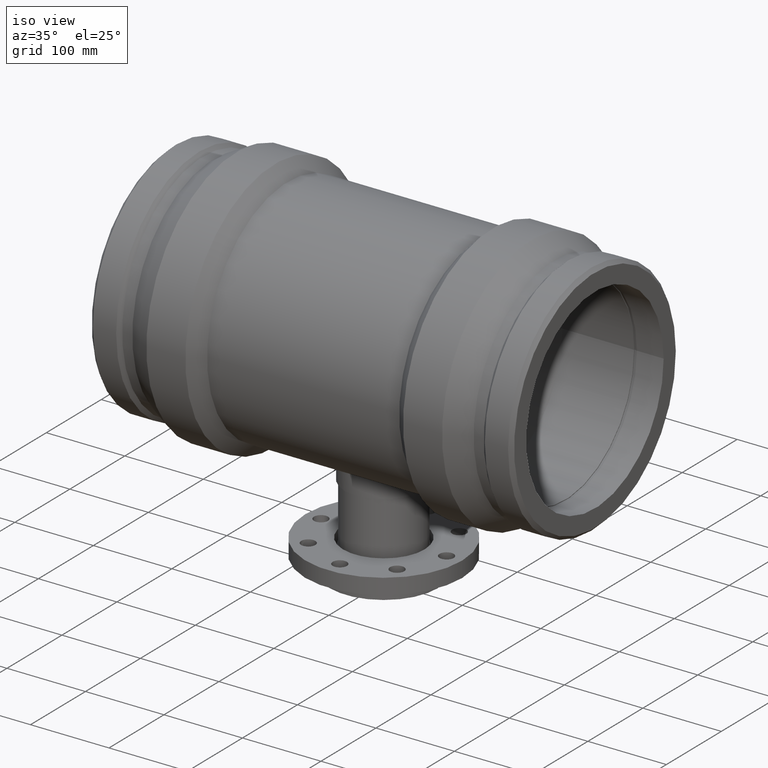
[diagram: clean part render]
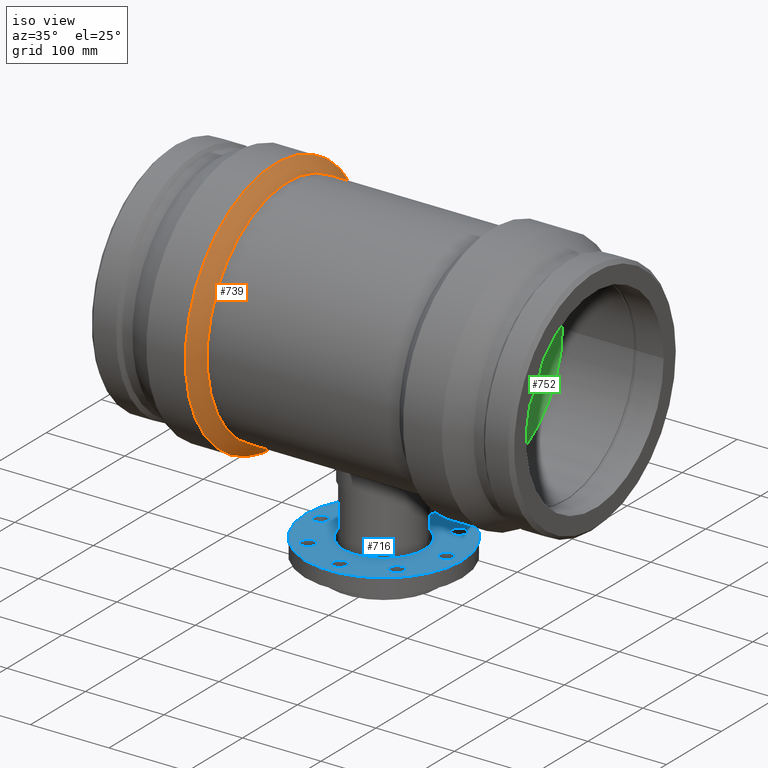
[diagram: same view with three faces highlighted in distinct colors, each labeled with its STEP entity id]
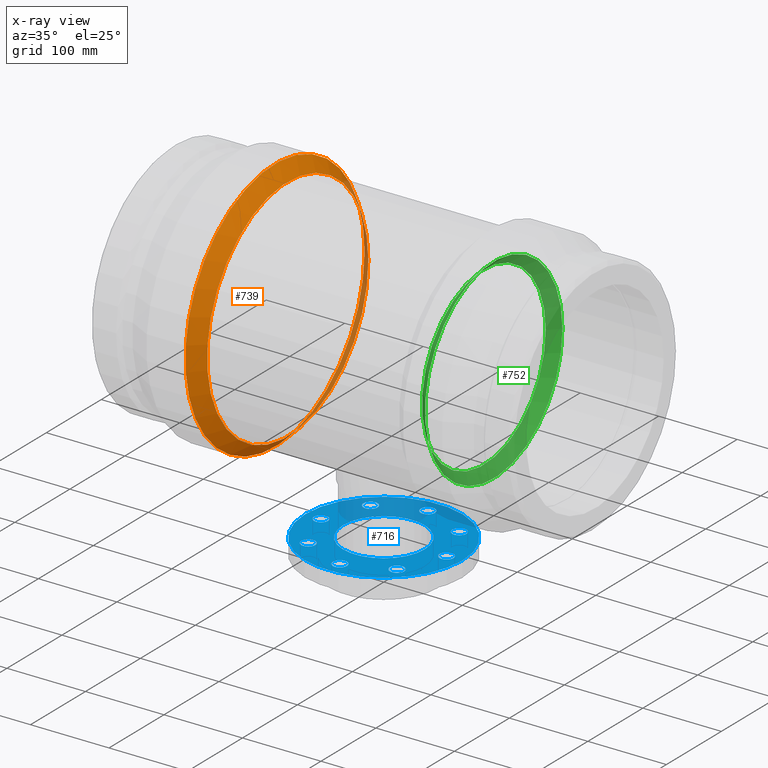
[diagram: x-ray of the same camera — body ghosted, the three highlighted faces saturated]
A machine part, iso view with three faces highlighted in distinct colors.
The next image is the same camera in x-ray (body ghosted, the three faces saturated) — at least one of them is partly hidden behind the body in this view.
Their STEP definitions:

[orange] entity #739 — the highlighted conical surface has half-angle 45 deg.
#21=CONICAL_SURFACE('',#846,154.85,45.);
#99=FACE_BOUND('',#371,.T.);
#148=CIRCLE('',#808,146.7);
#166=CIRCLE('',#845,163.);
#255=FACE_OUTER_BOUND('',#370,.T.);
#370=EDGE_LOOP('',(#656));
#371=EDGE_LOOP('',(#657));
#449=VERTEX_POINT('',#1543);
#469=VERTEX_POINT('',#1668);
#519=EDGE_CURVE('',#449,#449,#148,.T.);
#539=EDGE_CURVE('',#469,#469,#166,.T.);
#656=ORIENTED_EDGE('',*,*,#539,.T.);
#657=ORIENTED_EDGE('',*,*,#519,.F.);
#739=ADVANCED_FACE('',(#255,#99),#21,.T.);
#808=AXIS2_PLACEMENT_3D('',#1544,#981,#982);
#845=AXIS2_PLACEMENT_3D('',#1669,#1055,#1056);
#846=AXIS2_PLACEMENT_3D('',#1670,#1057,#1058);
#981=DIRECTION('center_axis',(1.,0.,0.));
#982=DIRECTION('ref_axis',(0.,0.,-1.));
#1055=DIRECTION('center_axis',(1.,0.,0.));
#1056=DIRECTION('ref_axis',(0.,0.,-1.));
#1057=DIRECTION('center_axis',(-1.,0.,0.));
#1058=DIRECTION('ref_axis',(0.,1.,0.));
#1543=CARTESIAN_POINT('',(-122.395,146.7,0.));
#1544=CARTESIAN_POINT('Origin',(-122.395,0.,0.));
#1668=CARTESIAN_POINT('',(-138.695,163.,0.));
#1669=CARTESIAN_POINT('Origin',(-138.695,0.,0.));
#1670=CARTESIAN_POINT('Origin',(-130.545,0.,0.));

[blue] entity #716 — the highlighted planar face has unit normal (0, 0, 1).
#32=PLANE('',#801);
#60=FACE_BOUND('',#309,.T.);
#61=FACE_BOUND('',#310,.T.);
#62=FACE_BOUND('',#311,.T.);
#63=FACE_BOUND('',#312,.T.);
#64=FACE_BOUND('',#313,.T.);
#65=FACE_BOUND('',#314,.T.);
#66=FACE_BOUND('',#315,.T.);
#67=FACE_BOUND('',#316,.T.);
#68=FACE_BOUND('',#317,.T.);
#121=CIRCLE('',#762,9.);
#123=CIRCLE('',#765,9.);
#125=CIRCLE('',#768,9.);
#127=CIRCLE('',#771,9.);
#129=CIRCLE('',#774,9.);
#131=CIRCLE('',#777,9.);
#133=CIRCLE('',#780,9.);
#135=CIRCLE('',#783,9.);
#144=CIRCLE('',#800,52.);
#145=CIRCLE('',#802,100.);
#232=FACE_OUTER_BOUND('',#308,.T.);
#308=EDGE_LOOP('',(#594));
#309=EDGE_LOOP('',(#595));
#310=EDGE_LOOP('',(#596));
#311=EDGE_LOOP('',(#597));
#312=EDGE_LOOP('',(#598));
#313=EDGE_LOOP('',(#599));
#314=EDGE_LOOP('',(#600));
#315=EDGE_LOOP('',(#601));
#316=EDGE_LOOP('',(#602));
#317=EDGE_LOOP('',(#603));
#421=VERTEX_POINT('',#1403);
#423=VERTEX_POINT('',#1408);
#425=VERTEX_POINT('',#1413);
#427=VERTEX_POINT('',#1418);
#429=VERTEX_POINT('',#1423);
#431=VERTEX_POINT('',#1428);
#433=VERTEX_POINT('',#1433);
#435=VERTEX_POINT('',#1438);
#445=VERTEX_POINT('',#1531);
#446=VERTEX_POINT('',#1534);
#491=EDGE_CURVE('',#421,#421,#121,.T.);
#493=EDGE_CURVE('',#423,#423,#123,.T.);
#495=EDGE_CURVE('',#425,#425,#125,.T.);
#497=EDGE_CURVE('',#427,#427,#127,.T.);
#499=EDGE_CURVE('',#429,#429,#129,.T.);
#501=EDGE_CURVE('',#431,#431,#131,.T.);
#503=EDGE_CURVE('',#433,#433,#133,.T.);
#505=EDGE_CURVE('',#435,#435,#135,.T.);
#515=EDGE_CURVE('',#445,#445,#144,.T.);
#516=EDGE_CURVE('',#446,#446,#145,.T.);
#594=ORIENTED_EDGE('',*,*,#516,.F.);
#595=ORIENTED_EDGE('',*,*,#491,.T.);
#596=ORIENTED_EDGE('',*,*,#493,.T.);
#597=ORIENTED_EDGE('',*,*,#495,.T.);
#598=ORIENTED_EDGE('',*,*,#497,.T.);
#599=ORIENTED_EDGE('',*,*,#499,.T.);
#600=ORIENTED_EDGE('',*,*,#501,.T.);
#601=ORIENTED_EDGE('',*,*,#503,.T.);
#602=ORIENTED_EDGE('',*,*,#505,.T.);
#603=ORIENTED_EDGE('',*,*,#515,.T.);
#716=ADVANCED_FACE('',(#232,#60,#61,#62,#63,#64,#65,#66,#67,#68),#32,.T.);
#762=AXIS2_PLACEMENT_3D('',#1404,#889,#890);
#765=AXIS2_PLACEMENT_3D('',#1409,#895,#896);
#768=AXIS2_PLACEMENT_3D('',#1414,#901,#902);
#771=AXIS2_PLACEMENT_3D('',#1419,#907,#908);
#774=AXIS2_PLACEMENT_3D('',#1424,#913,#914);
#777=AXIS2_PLACEMENT_3D('',#1429,#919,#920);
#780=AXIS2_PLACEMENT_3D('',#1434,#925,#926);
#783=AXIS2_PLACEMENT_3D('',#1439,#931,#932);
#800=AXIS2_PLACEMENT_3D('',#1532,#965,#966);
#801=AXIS2_PLACEMENT_3D('',#1533,#967,#968);
#802=AXIS2_PLACEMENT_3D('',#1535,#969,#970);
#889=DIRECTION('center_axis',(-1.22464679914735E-16,0.,-1.));
#890=DIRECTION('ref_axis',(0.707106781186547,0.707106781186548,0.));
#895=DIRECTION('center_axis',(-1.22464679914735E-16,0.,-1.));
#896=DIRECTION('ref_axis',(-1.2335811384724E-16,1.,0.));
#901=DIRECTION('center_axis',(-1.22464679914735E-16,0.,-1.));
#902=DIRECTION('ref_axis',(-0.707106781186548,0.707106781186547,0.));
#907=DIRECTION('center_axis',(-1.22464679914735E-16,0.,-1.));
#908=DIRECTION('ref_axis',(-1.,-1.2335811384724E-16,0.));
#913=DIRECTION('center_axis',(-1.22464679914735E-16,0.,-1.));
#914=DIRECTION('ref_axis',(-0.707106781186547,-0.707106781186548,0.));
#919=DIRECTION('center_axis',(-1.22464679914735E-16,0.,-1.));
#920=DIRECTION('ref_axis',(0.,-1.,0.));
#925=DIRECTION('center_axis',(-1.22464679914735E-16,0.,-1.));
#926=DIRECTION('ref_axis',(0.707106781186548,-0.707106781186547,0.));
#931=DIRECTION('center_axis',(-1.22464679914735E-16,0.,-1.));
#932=DIRECTION('ref_axis',(1.,0.,0.));
#965=DIRECTION('center_axis',(-1.22464679914735E-16,0.,-1.));
#966=DIRECTION('ref_axis',(1.,0.,-1.22464679914735E-16));
#967=DIRECTION('center_axis',(1.22464679914735E-16,0.,1.));
#968=DIRECTION('ref_axis',(1.,0.,0.));
#969=DIRECTION('center_axis',(-1.22464679914735E-16,0.,-1.));
#970=DIRECTION('ref_axis',(1.,0.,-1.22464679914735E-16));
#1403=CARTESIAN_POINT('',(-62.9325035256027,-62.9325035256027,-230.));
#1404=CARTESIAN_POINT('Origin',(-56.5685424949238,-56.5685424949238,-230.));
#1408=CARTESIAN_POINT('',(-8.60857782988463E-15,-89.,-230.));
#1409=CARTESIAN_POINT('Origin',(-2.19312541253865E-14,-80.,-230.));
#1413=CARTESIAN_POINT('',(62.9325035256027,-62.9325035256027,-230.));
#1414=CARTESIAN_POINT('Origin',(56.5685424949238,-56.5685424949238,-230.));
#1418=CARTESIAN_POINT('',(89.,2.36259756353544E-14,-230.));
#1419=CARTESIAN_POINT('Origin',(80.,1.47441914383532E-14,-230.));
#1423=CARTESIAN_POINT('',(62.9325035256027,62.9325035256027,-230.));
#1424=CARTESIAN_POINT('Origin',(56.5685424949238,56.5685424949238,-230.));
#1428=CARTESIAN_POINT('',(-1.74903620268859E-14,89.,-230.));
#1429=CARTESIAN_POINT('Origin',(-2.63721462238871E-14,80.,-230.));
#1433=CARTESIAN_POINT('',(-62.9325035256028,62.9325035256027,-230.));
#1434=CARTESIAN_POINT('Origin',(-56.5685424949238,56.5685424949238,-230.));
#1438=CARTESIAN_POINT('',(-89.,1.10218211923262E-15,-230.));
#1439=CARTESIAN_POINT('Origin',(-80.,0.,-230.));
#1531=CARTESIAN_POINT('',(-52.,0.,-230.));
#1532=CARTESIAN_POINT('Origin',(-2.81668763803891E-14,0.,-230.));
#1533=CARTESIAN_POINT('Origin',(-100.,0.,-230.));
#1534=CARTESIAN_POINT('',(-100.,0.,-230.));
#1535=CARTESIAN_POINT('Origin',(-2.81668763803891E-14,0.,-230.));

[green] entity #752 — the highlighted conical surface has half-angle 45 deg.
#27=CONICAL_SURFACE('',#871,118.75,45.);
#113=FACE_BOUND('',#398,.T.);
#178=CIRCLE('',#870,125.);
#179=CIRCLE('',#872,112.5);
#268=FACE_OUTER_BOUND('',#397,.T.);
#397=EDGE_LOOP('',(#683));
#398=EDGE_LOOP('',(#684));
#481=VERTEX_POINT('',#1705);
#482=VERTEX_POINT('',#1708);
#551=EDGE_CURVE('',#481,#481,#178,.T.);
#552=EDGE_CURVE('',#482,#482,#179,.T.);
#683=ORIENTED_EDGE('',*,*,#551,.T.);
#684=ORIENTED_EDGE('',*,*,#552,.F.);
#752=ADVANCED_FACE('',(#268,#113),#27,.F.);
#870=AXIS2_PLACEMENT_3D('',#1706,#1105,#1106);
#871=AXIS2_PLACEMENT_3D('',#1707,#1107,#1108);
#872=AXIS2_PLACEMENT_3D('',#1709,#1109,#1110);
#1105=DIRECTION('center_axis',(1.,0.,0.));
#1106=DIRECTION('ref_axis',(0.,0.,-1.));
#1107=DIRECTION('center_axis',(1.,0.,0.));
#1108=DIRECTION('ref_axis',(0.,1.,0.));
#1109=DIRECTION('center_axis',(1.,0.,0.));
#1110=DIRECTION('ref_axis',(0.,0.,-1.));
#1705=CARTESIAN_POINT('',(140.,125.,0.));
#1706=CARTESIAN_POINT('Origin',(140.,0.,0.));
#1707=CARTESIAN_POINT('Origin',(133.75,0.,0.));
#1708=CARTESIAN_POINT('',(127.5,112.5,0.));
#1709=CARTESIAN_POINT('Origin',(127.5,0.,0.));